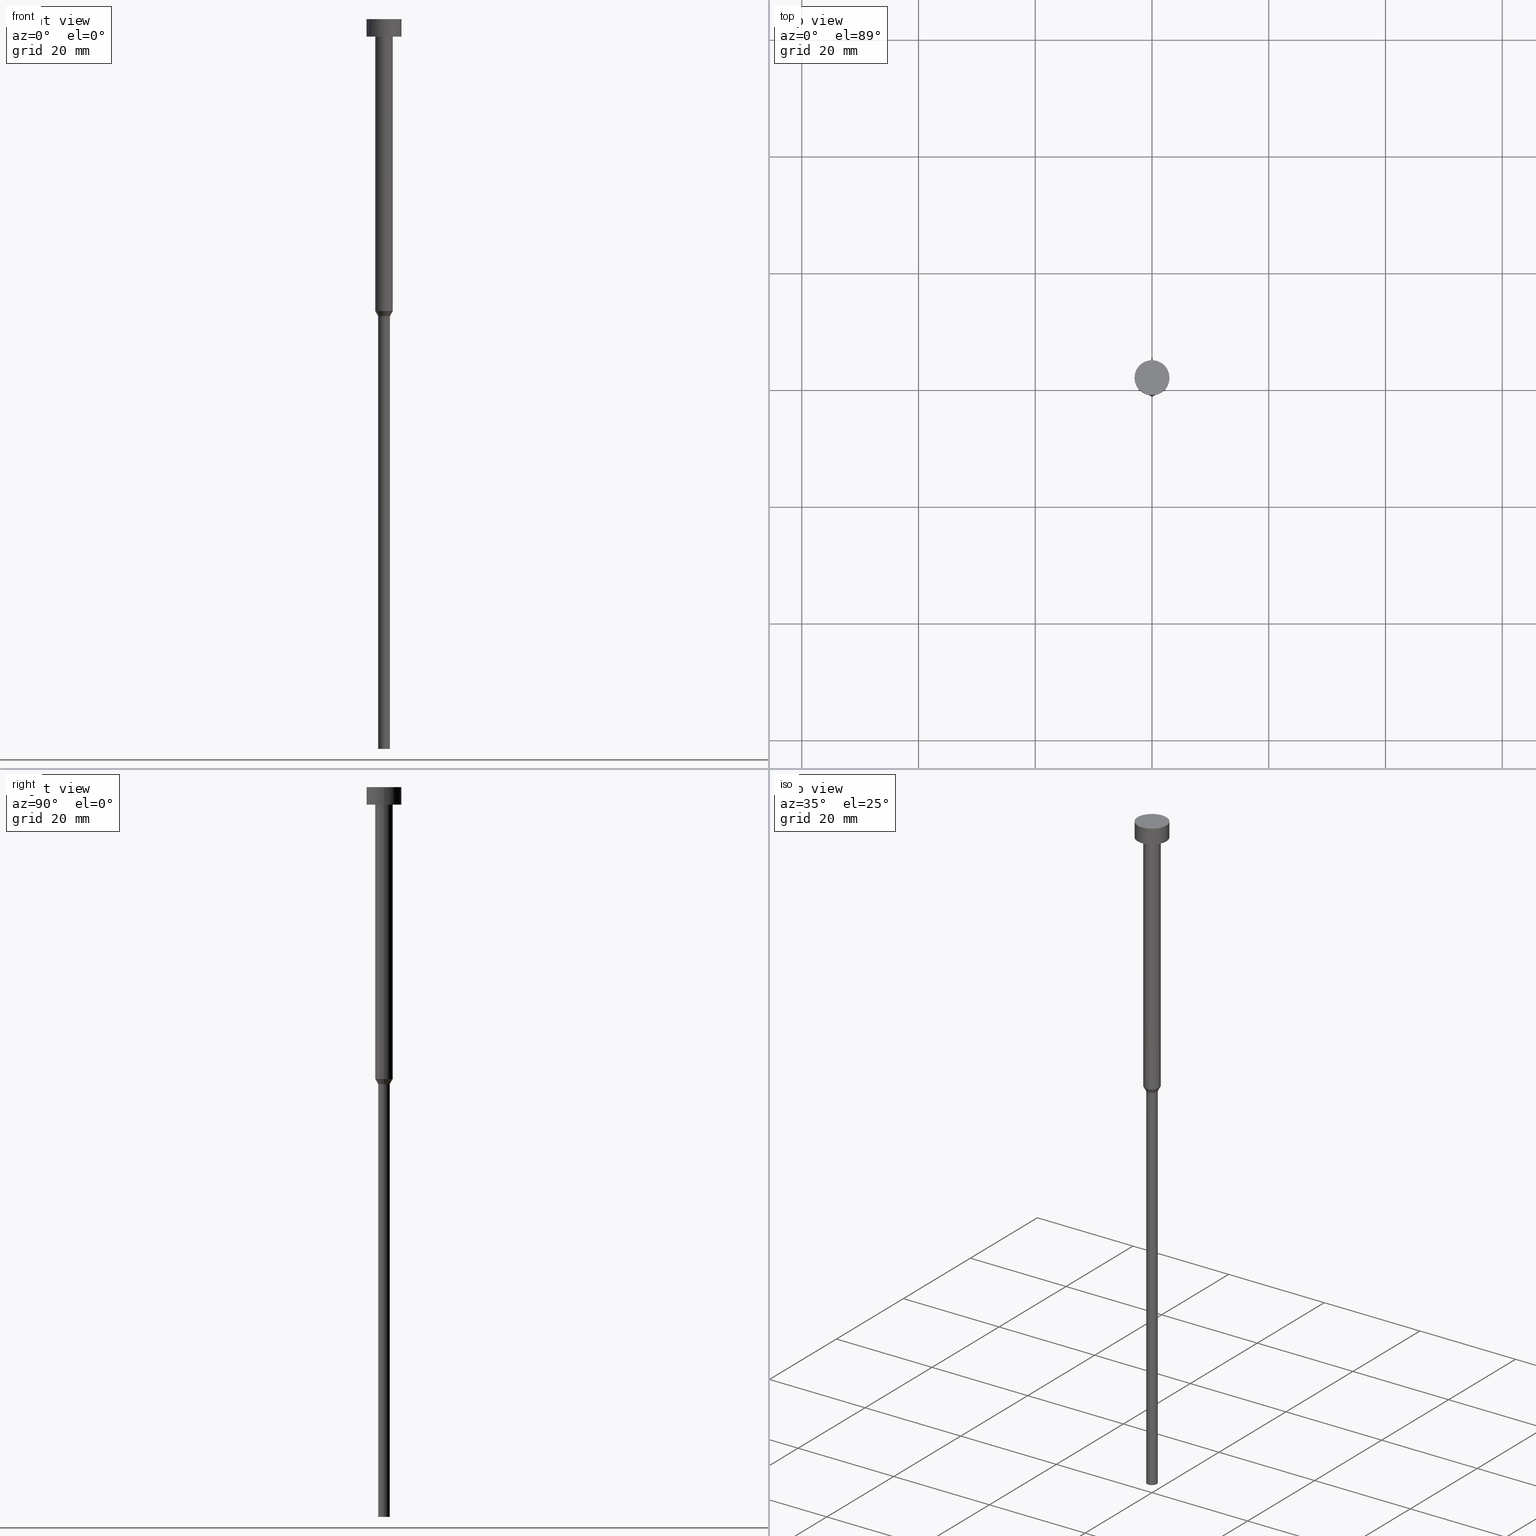
[diagram: canonical four-view strip — front | top / right | iso, engineering-drawing reading convention]
A machine part, canonical four-view strip (front | top / right | iso — engineering-drawing reading convention). The complete STEP part file that produces these views, byte-faithful:
ISO-10303-21;
HEADER;
FILE_DESCRIPTION (( 'STEP AP203' ),
    '1' );
FILE_NAME ('9678.STEP',
    '2023-02-13T10:03:48',
    ( '' ),
    ( '' ),
    'SwSTEP 2.0',
    'SolidWorks 2019',
    '' );
FILE_SCHEMA (( 'CONFIG_CONTROL_DESIGN' ));
ENDSEC;

DATA;
#1 = ORIENTED_EDGE ( 'NONE', *, *, #325, .F. ) ;
#2 = AXIS2_PLACEMENT_3D ( 'NONE', #94, #14, #314 ) ;
#3 = CARTESIAN_POINT ( 'NONE',  ( 1.000000000000000000, 0.000000000000000000, 0.000000000000000000 ) ) ;
#4 = DIRECTION ( 'NONE',  ( -0.000000000000000000, -0.000000000000000000, 1.000000000000000000 ) ) ;
#5 = ADVANCED_FACE ( 'NONE', ( #221 ), #352, .T. ) ;
#6 = CARTESIAN_POINT ( 'NONE',  ( 1.000000000000000000, 0.000000000000000000, -125.0000000000000000 ) ) ;
#7 = ORIENTED_EDGE ( 'NONE', *, *, #325, .T. ) ;
#8 = DIRECTION ( 'NONE',  ( -0.000000000000000000, -0.000000000000000000, 1.000000000000000000 ) ) ;
#9 = APPLICATION_PROTOCOL_DEFINITION ( 'international standard', 'config_control_design', 1994, #164 ) ;
#10 = LOCAL_TIME ( 11, 3, 48.00000000000000000, #76 ) ;
#11 = ORGANIZATION ( 'NEUR�EN�', 'NEUR�EN�', '' ) ;
#12 = CC_DESIGN_DATE_AND_TIME_ASSIGNMENT ( #331, #174, ( #347 ) ) ;
#13 = ORIENTED_EDGE ( 'NONE', *, *, #335, .T. ) ;
#14 = DIRECTION ( 'NONE',  ( -0.000000000000000000, -0.000000000000000000, 1.000000000000000000 ) ) ;
#15 = VECTOR ( 'NONE', #322, 1000.000000000000000 ) ;
#16 = ORIENTED_EDGE ( 'NONE', *, *, #349, .T. ) ;
#17 = APPROVAL_STATUS ( 'not_yet_approved' ) ;
#18 = AXIS2_PLACEMENT_3D ( 'NONE', #96, #157, #216 ) ;
#19 = PLANE ( 'NONE',  #159 ) ;
#20 = DATE_TIME_ROLE ( 'creation_date' ) ;
#21 = CARTESIAN_POINT ( 'NONE',  ( 3.000000000000000000, 0.000000000000000000, 0.000000000000000000 ) ) ;
#22 = APPROVAL_STATUS ( 'not_yet_approved' ) ;
#23 = AXIS2_PLACEMENT_3D ( 'NONE', #228, #55, #304 ) ;
#24 = VERTEX_POINT ( 'NONE', #50 ) ;
#25 = DIRECTION ( 'NONE',  ( -0.000000000000000000, -0.000000000000000000, 1.000000000000000000 ) ) ;
#26 = EDGE_LOOP ( 'NONE', ( #83, #44 ) ) ;
#27 = DIRECTION ( 'NONE',  ( -0.000000000000000000, -0.000000000000000000, 1.000000000000000000 ) ) ;
#28 = CIRCLE ( 'NONE', #250, 1.500000000000000000 ) ;
#29 = FACE_OUTER_BOUND ( 'NONE', #327, .T. ) ;
#30 = PERSON_AND_ORGANIZATION ( #203, #11 ) ;
#31 = CARTESIAN_POINT ( 'NONE',  ( 0.000000000000000000, 0.000000000000000000, -3.000000000000000888 ) ) ;
#32 = ORIENTED_EDGE ( 'NONE', *, *, #86, .T. ) ;
#33 = ADVANCED_FACE ( 'NONE', ( #105 ), #139, .T. ) ;
#34 = CC_DESIGN_PERSON_AND_ORGANIZATION_ASSIGNMENT ( #198, #240, ( #120 ) ) ;
#35 = EDGE_LOOP ( 'NONE', ( #224, #46 ) ) ;
#36 = CIRCLE ( 'NONE', #23, 3.000000000000000000 ) ;
#37 = CARTESIAN_POINT ( 'NONE',  ( 0.000000000000000000, 0.000000000000000000, 0.000000000000000000 ) ) ;
#38 = VERTEX_POINT ( 'NONE', #110 ) ;
#39 = FACE_OUTER_BOUND ( 'NONE', #91, .T. ) ;
#40 = PERSON_AND_ORGANIZATION_ROLE ( 'design_owner' ) ;
#41 = EDGE_CURVE ( 'NONE', #188, #114, #270, .T. ) ;
#42 = VERTEX_POINT ( 'NONE', #330 ) ;
#43 = CIRCLE ( 'NONE', #78, 3.000000000000000000 ) ;
#44 = ORIENTED_EDGE ( 'NONE', *, *, #269, .T. ) ;
#45 = DIRECTION ( 'NONE',  ( 1.000000000000000000, 0.000000000000000000, 0.000000000000000000 ) ) ;
#46 = ORIENTED_EDGE ( 'NONE', *, *, #273, .T. ) ;
#47 = APPROVAL_PERSON_ORGANIZATION ( #30, #301, #299 ) ;
#48 = AXIS2_PLACEMENT_3D ( 'NONE', #59, #288, #262 ) ;
#49 = CARTESIAN_POINT ( 'NONE',  ( 3.000000000000000000, 0.000000000000000000, -3.000000000000000888 ) ) ;
#50 = CARTESIAN_POINT ( 'NONE',  ( 1.000000000000000000, 0.000000000000000000, -50.86602540378444104 ) ) ;
#51 = COORDINATED_UNIVERSAL_TIME_OFFSET ( 1, 0, .AHEAD. ) ;
#52 = LINE ( 'NONE', #21, #311 ) ;
#53 = CONICAL_SURFACE ( 'NONE', #48, 1.500000000000000000, 0.5235987755983002589 ) ;
#54 = ORIENTED_EDGE ( 'NONE', *, *, #291, .T. ) ;
#55 = DIRECTION ( 'NONE',  ( -0.000000000000000000, -0.000000000000000000, 1.000000000000000000 ) ) ;
#56 = LINE ( 'NONE', #149, #112 ) ;
#57 = CC_DESIGN_APPROVAL ( #229, ( #141 ) ) ;
#58 = DIRECTION ( 'NONE',  ( -0.5000000000000012212, 6.123233995736782060E-17, 0.8660254037844380415 ) ) ;
#59 = CARTESIAN_POINT ( 'NONE',  ( 0.000000000000000000, 0.000000000000000000, -50.00000000000000000 ) ) ;
#60 = DIRECTION ( 'NONE',  ( 0.000000000000000000, 0.000000000000000000, 1.000000000000000000 ) ) ;
#61 = ORIENTED_EDGE ( 'NONE', *, *, #291, .F. ) ;
#62 = CIRCLE ( 'NONE', #220, 1.500000000000000000 ) ;
#63 = COORDINATED_UNIVERSAL_TIME_OFFSET ( 1, 0, .AHEAD. ) ;
#64 = EDGE_CURVE ( 'NONE', #275, #42, #167, .T. ) ;
#65 = DIRECTION ( 'NONE',  ( 1.000000000000000000, 0.000000000000000000, 0.000000000000000000 ) ) ;
#66 = ORIENTED_EDGE ( 'NONE', *, *, #124, .F. ) ;
#67 = CIRCLE ( 'NONE', #268, 1.000000000000000000 ) ;
#68 = CC_DESIGN_PERSON_AND_ORGANIZATION_ASSIGNMENT ( #323, #355, ( #141 ) ) ;
#69 = CARTESIAN_POINT ( 'NONE',  ( 0.000000000000000000, 0.000000000000000000, -125.0000000000000000 ) ) ;
#70 = CALENDAR_DATE ( 2023, 13, 2 ) ;
#71 = PRODUCT ( '9678', '9678', '', ( #217 ) ) ;
#72 = APPROVAL_PERSON_ORGANIZATION ( #346, #229, #185 ) ;
#73 = CARTESIAN_POINT ( 'NONE',  ( -3.000000000000000000, 3.673940397442059868E-16, -3.000000000000000888 ) ) ;
#74 = ORIENTED_EDGE ( 'NONE', *, *, #154, .T. ) ;
#75 = EDGE_CURVE ( 'NONE', #38, #128, #36, .T. ) ;
#76 = COORDINATED_UNIVERSAL_TIME_OFFSET ( 1, 0, .AHEAD. ) ;
#77 = DIRECTION ( 'NONE',  ( 1.000000000000000000, 0.000000000000000000, 0.000000000000000000 ) ) ;
#78 = AXIS2_PLACEMENT_3D ( 'NONE', #247, #334, #175 ) ;
#79 = LOCAL_TIME ( 11, 3, 48.00000000000000000, #246 ) ;
#80 = VERTEX_POINT ( 'NONE', #6 ) ;
#81 = DIRECTION ( 'NONE',  ( 1.000000000000000000, 0.000000000000000000, 0.000000000000000000 ) ) ;
#82 = ORIENTED_EDGE ( 'NONE', *, *, #321, .T. ) ;
#83 = ORIENTED_EDGE ( 'NONE', *, *, #75, .T. ) ;
#84 = DIRECTION ( 'NONE',  ( 1.000000000000000000, 0.000000000000000000, 0.000000000000000000 ) ) ;
#85 = PERSON_AND_ORGANIZATION_ROLE ( 'classification_officer' ) ;
#86 = EDGE_CURVE ( 'NONE', #226, #259, #243, .T. ) ;
#87 =( NAMED_UNIT ( * ) PLANE_ANGLE_UNIT ( ) SI_UNIT ( $, .RADIAN. ) );
#88 = ORIENTED_EDGE ( 'NONE', *, *, #211, .T. ) ;
#89 = DIRECTION ( 'NONE',  ( 1.000000000000000000, 0.000000000000000000, 0.000000000000000000 ) ) ;
#90 =( NAMED_UNIT ( * ) SI_UNIT ( $, .STERADIAN. ) SOLID_ANGLE_UNIT ( ) );
#91 = EDGE_LOOP ( 'NONE', ( #285, #82, #309, #294 ) ) ;
#92 = EDGE_CURVE ( 'NONE', #24, #188, #284, .T. ) ;
#93 = VECTOR ( 'NONE', #225, 1000.000000000000000 ) ;
#94 = CARTESIAN_POINT ( 'NONE',  ( 0.000000000000000000, 0.000000000000000000, 0.000000000000000000 ) ) ;
#95 = ORIENTED_EDGE ( 'NONE', *, *, #41, .F. ) ;
#96 = CARTESIAN_POINT ( 'NONE',  ( 0.000000000000000000, 0.000000000000000000, 0.000000000000000000 ) ) ;
#97 = LOCAL_TIME ( 11, 3, 48.00000000000000000, #51 ) ;
#98 = ORIENTED_EDGE ( 'NONE', *, *, #124, .T. ) ;
#99 = CALENDAR_DATE ( 2023, 13, 2 ) ;
#100 = CARTESIAN_POINT ( 'NONE',  ( 0.000000000000000000, 0.000000000000000000, 0.000000000000000000 ) ) ;
#101 = EDGE_CURVE ( 'NONE', #80, #24, #121, .T. ) ;
#102 = APPROVAL_DATE_TIME ( #163, #229 ) ;
#103 = CIRCLE ( 'NONE', #258, 1.000000000000000000 ) ;
#104 = DIRECTION ( 'NONE',  ( 1.000000000000000000, 0.000000000000000000, 0.000000000000000000 ) ) ;
#105 = FACE_OUTER_BOUND ( 'NONE', #131, .T. ) ;
#106 = DATE_AND_TIME ( #136, #97 ) ;
#107 = CARTESIAN_POINT ( 'NONE',  ( -3.000000000000000000, 3.673940397442059868E-16, 0.000000000000000000 ) ) ;
#108 = APPROVAL ( #17, 'NEUR�EN�' ) ;
#109 = DIRECTION ( 'NONE',  ( 1.000000000000000000, 0.000000000000000000, 0.000000000000000000 ) ) ;
#110 = CARTESIAN_POINT ( 'NONE',  ( 3.000000000000000000, 0.000000000000000000, -3.673940397442059868E-16 ) ) ;
#111 =( LENGTH_UNIT ( ) NAMED_UNIT ( * ) SI_UNIT ( .MILLI., .METRE. ) );
#112 = VECTOR ( 'NONE', #337, 1000.000000000000000 ) ;
#113 = CARTESIAN_POINT ( 'NONE',  ( 0.000000000000000000, 0.000000000000000000, -3.000000000000000888 ) ) ;
#114 = VERTEX_POINT ( 'NONE', #276 ) ;
#115 = SHAPE_DEFINITION_REPRESENTATION ( #178, #132 ) ;
#116 = CARTESIAN_POINT ( 'NONE',  ( -1.500000000000000000, 1.836970198721029934E-16, 0.000000000000000000 ) ) ;
#117 = DIRECTION ( 'NONE',  ( 1.000000000000000000, 0.000000000000000000, 0.000000000000000000 ) ) ;
#118 = EDGE_LOOP ( 'NONE', ( #152, #98, #215, #242 ) ) ;
#119 = DIRECTION ( 'NONE',  ( -1.000000000000000000, 0.000000000000000000, -0.000000000000000000 ) ) ;
#120 = PRODUCT_DEFINITION_FORMATION_WITH_SPECIFIED_SOURCE ( 'LIBOVOLN�', '', #71, .NOT_KNOWN. ) ;
#121 = LINE ( 'NONE', #3, #351 ) ;
#122 = CYLINDRICAL_SURFACE ( 'NONE', #341, 1.500000000000000000 ) ;
#123 = FACE_OUTER_BOUND ( 'NONE', #118, .T. ) ;
#124 = EDGE_CURVE ( 'NONE', #263, #24, #208, .T. ) ;
#125 = ORIENTED_EDGE ( 'NONE', *, *, #273, .F. ) ;
#126 = AXIS2_PLACEMENT_3D ( 'NONE', #289, #340, #65 ) ;
#127 = APPLICATION_PROTOCOL_DEFINITION ( 'international standard', 'config_control_design', 1994, #189 ) ;
#128 = VERTEX_POINT ( 'NONE', #252 ) ;
#129 = ADVANCED_FACE ( 'NONE', ( #281, #29 ), #256, .T. ) ;
#130 = CARTESIAN_POINT ( 'NONE',  ( -1.000000000000000000, 1.224646799147353207E-16, -50.86602540378444104 ) ) ;
#131 = EDGE_LOOP ( 'NONE', ( #54, #7, #156, #204 ) ) ;
#132 = ADVANCED_BREP_SHAPE_REPRESENTATION ( '9678', ( #286, #271 ), #195 ) ;
#133 = ADVANCED_FACE ( 'NONE', ( #308 ), #53, .T. ) ;
#134 = FACE_OUTER_BOUND ( 'NONE', #267, .T. ) ;
#135 = APPROVAL_ROLE ( '' ) ;
#136 = CALENDAR_DATE ( 2023, 13, 2 ) ;
#137 = CLOSED_SHELL ( 'NONE', ( #165, #140, #133, #33, #206, #317, #177, #353, #129, #257, #5 ) ) ;
#138 = VECTOR ( 'NONE', #58, 999.9999999999998863 ) ;
#139 = CYLINDRICAL_SURFACE ( 'NONE', #169, 1.000000000000000000 ) ;
#140 = ADVANCED_FACE ( 'NONE', ( #39 ), #238, .T. ) ;
#141 = PRODUCT_DEFINITION ( 'NEZN�M�', '', #120, #176 ) ;
#142 = CALENDAR_DATE ( 2023, 13, 2 ) ;
#143 = DIRECTION ( 'NONE',  ( 1.000000000000000000, 0.000000000000000000, 0.000000000000000000 ) ) ;
#144 = DIRECTION ( 'NONE',  ( -0.000000000000000000, -0.000000000000000000, 1.000000000000000000 ) ) ;
#145 = CARTESIAN_POINT ( 'NONE',  ( -1.500000000000000000, 1.836970198721029934E-16, -50.00000000000000000 ) ) ;
#146 = AXIS2_PLACEMENT_3D ( 'NONE', #31, #4, #117 ) ;
#147 = CC_DESIGN_APPROVAL ( #301, ( #347 ) ) ;
#148 = CARTESIAN_POINT ( 'NONE',  ( 0.000000000000000000, 0.000000000000000000, -50.86602540378444104 ) ) ;
#149 = CARTESIAN_POINT ( 'NONE',  ( -1.000000000000000000, 1.224646799147353207E-16, 0.000000000000000000 ) ) ;
#150 = LINE ( 'NONE', #145, #138 ) ;
#151 = LOCAL_TIME ( 11, 3, 48.00000000000000000, #63 ) ;
#152 = ORIENTED_EDGE ( 'NONE', *, *, #335, .F. ) ;
#153 = CYLINDRICAL_SURFACE ( 'NONE', #2, 3.000000000000000000 ) ;
#154 = EDGE_CURVE ( 'NONE', #188, #275, #345, .T. ) ;
#155 = CARTESIAN_POINT ( 'NONE',  ( 1.500000000000000000, 0.000000000000000000, -50.00000000000000000 ) ) ;
#156 = ORIENTED_EDGE ( 'NONE', *, *, #344, .F. ) ;
#157 = DIRECTION ( 'NONE',  ( -0.000000000000000000, -0.000000000000000000, 1.000000000000000000 ) ) ;
#158 = FACE_OUTER_BOUND ( 'NONE', #292, .T. ) ;
#159 = AXIS2_PLACEMENT_3D ( 'NONE', #69, #241, #197 ) ;
#160 = ORIENTED_EDGE ( 'NONE', *, *, #92, .F. ) ;
#161 = DIRECTION ( 'NONE',  ( 1.000000000000000000, 0.000000000000000000, 0.000000000000000000 ) ) ;
#162 = AXIS2_PLACEMENT_3D ( 'NONE', #205, #248, #89 ) ;
#163 = DATE_AND_TIME ( #99, #151 ) ;
#164 = APPLICATION_CONTEXT ( 'configuration controlled 3d designs of mechanical parts and assemblies' ) ;
#165 = ADVANCED_FACE ( 'NONE', ( #184 ), #153, .T. ) ;
#166 = CC_DESIGN_DATE_AND_TIME_ASSIGNMENT ( #298, #20, ( #141 ) ) ;
#167 = CIRCLE ( 'NONE', #162, 1.500000000000000000 ) ;
#168 = PERSON_AND_ORGANIZATION ( #203, #11 ) ;
#169 = AXIS2_PLACEMENT_3D ( 'NONE', #244, #354, #328 ) ;
#170 = CIRCLE ( 'NONE', #235, 1.000000000000000000 ) ;
#171 = DIRECTION ( 'NONE',  ( -0.000000000000000000, -0.000000000000000000, 1.000000000000000000 ) ) ;
#172 = CYLINDRICAL_SURFACE ( 'NONE', #219, 1.000000000000000000 ) ;
#173 = DIRECTION ( 'NONE',  ( 0.5000000000000012212, 0.000000000000000000, 0.8660254037844380415 ) ) ;
#174 = DATE_TIME_ROLE ( 'classification_date' ) ;
#175 = DIRECTION ( 'NONE',  ( 1.000000000000000000, 0.000000000000000000, 0.000000000000000000 ) ) ;
#176 = DESIGN_CONTEXT ( 'detailed design', #189, 'design' ) ;
#177 = ADVANCED_FACE ( 'NONE', ( #123 ), #329, .T. ) ;
#178 = PRODUCT_DEFINITION_SHAPE ( 'NONE', 'NONE',  #141 ) ;
#179 = VERTEX_POINT ( 'NONE', #310 ) ;
#180 = DIRECTION ( 'NONE',  ( 1.000000000000000000, 0.000000000000000000, 0.000000000000000000 ) ) ;
#181 = ORIENTED_EDGE ( 'NONE', *, *, #321, .F. ) ;
#182 = COORDINATED_UNIVERSAL_TIME_OFFSET ( 1, 0, .AHEAD. ) ;
#183 = ORIENTED_EDGE ( 'NONE', *, *, #269, .F. ) ;
#184 = FACE_OUTER_BOUND ( 'NONE', #343, .T. ) ;
#185 = APPROVAL_ROLE ( '' ) ;
#186 = AXIS2_PLACEMENT_3D ( 'NONE', #148, #144, #84 ) ;
#187 = CARTESIAN_POINT ( 'NONE',  ( 1.500000000000000000, 0.000000000000000000, 0.000000000000000000 ) ) ;
#188 = VERTEX_POINT ( 'NONE', #155 ) ;
#189 = APPLICATION_CONTEXT ( 'configuration controlled 3d designs of mechanical parts and assemblies' ) ;
#190 = DIRECTION ( 'NONE',  ( 1.000000000000000000, 0.000000000000000000, 0.000000000000000000 ) ) ;
#191 = EDGE_LOOP ( 'NONE', ( #1, #88, #303, #66 ) ) ;
#192 = CALENDAR_DATE ( 2023, 13, 2 ) ;
#193 = DATE_AND_TIME ( #70, #79 ) ;
#194 = LINE ( 'NONE', #107, #15 ) ;
#195 =( GEOMETRIC_REPRESENTATION_CONTEXT ( 3 ) GLOBAL_UNCERTAINTY_ASSIGNED_CONTEXT ( ( #277 ) ) GLOBAL_UNIT_ASSIGNED_CONTEXT ( ( #111, #87, #90 ) ) REPRESENTATION_CONTEXT ( 'NONE', 'WORKASPACE' ) );
#196 = DIRECTION ( 'NONE',  ( 0.000000000000000000, -0.000000000000000000, 1.000000000000000000 ) ) ;
#197 = DIRECTION ( 'NONE',  ( -1.000000000000000000, 0.000000000000000000, -0.000000000000000000 ) ) ;
#198 = PERSON_AND_ORGANIZATION ( #203, #11 ) ;
#199 = EDGE_CURVE ( 'NONE', #114, #188, #62, .T. ) ;
#200 = LOCAL_TIME ( 11, 3, 48.00000000000000000, #182 ) ;
#201 = DIRECTION ( 'NONE',  ( -0.000000000000000000, -0.000000000000000000, 1.000000000000000000 ) ) ;
#202 = CARTESIAN_POINT ( 'NONE',  ( 1.500000000000000000, 0.000000000000000000, -50.00000000000000000 ) ) ;
#203 = PERSON ( 'NEUR�EN�', 'NEUR�EN�', 'NEUR�EN�', ('NEUR�EN�'), ('NEUR�EN�'), ('NEUR�EN�') ) ;
#204 = ORIENTED_EDGE ( 'NONE', *, *, #101, .F. ) ;
#205 = CARTESIAN_POINT ( 'NONE',  ( 0.000000000000000000, 0.000000000000000000, -3.000000000000000888 ) ) ;
#206 = ADVANCED_FACE ( 'NONE', ( #158 ), #19, .T. ) ;
#207 = CARTESIAN_POINT ( 'NONE',  ( 0.000000000000000000, 0.000000000000000000, -50.86602540378444104 ) ) ;
#208 = CIRCLE ( 'NONE', #186, 1.000000000000000000 ) ;
#209 = ORIENTED_EDGE ( 'NONE', *, *, #245, .F. ) ;
#210 = CARTESIAN_POINT ( 'NONE',  ( 0.000000000000000000, -3.000000000000000000, -3.000000000000000888 ) ) ;
#211 = EDGE_CURVE ( 'NONE', #179, #80, #67, .T. ) ;
#212 = ORIENTED_EDGE ( 'NONE', *, *, #245, .T. ) ;
#213 = DIRECTION ( 'NONE',  ( 1.000000000000000000, 0.000000000000000000, 0.000000000000000000 ) ) ;
#214 = FACE_OUTER_BOUND ( 'NONE', #266, .T. ) ;
#215 = ORIENTED_EDGE ( 'NONE', *, *, #92, .T. ) ;
#216 = DIRECTION ( 'NONE',  ( 1.000000000000000000, 0.000000000000000000, 0.000000000000000000 ) ) ;
#217 = MECHANICAL_CONTEXT ( 'NONE', #164, 'mechanical' ) ;
#218 = EDGE_CURVE ( 'NONE', #259, #128, #194, .T. ) ;
#219 = AXIS2_PLACEMENT_3D ( 'NONE', #278, #27, #77 ) ;
#220 = AXIS2_PLACEMENT_3D ( 'NONE', #237, #260, #190 ) ;
#221 = FACE_OUTER_BOUND ( 'NONE', #26, .T. ) ;
#222 = CARTESIAN_POINT ( 'NONE',  ( 0.000000000000000000, 0.000000000000000000, -125.0000000000000000 ) ) ;
#223 = VECTOR ( 'NONE', #342, 1000.000000000000000 ) ;
#224 = ORIENTED_EDGE ( 'NONE', *, *, #64, .T. ) ;
#225 = DIRECTION ( 'NONE',  ( -0.000000000000000000, -0.000000000000000000, 1.000000000000000000 ) ) ;
#226 = VERTEX_POINT ( 'NONE', #49 ) ;
#227 = LINE ( 'NONE', #116, #93 ) ;
#228 = CARTESIAN_POINT ( 'NONE',  ( 0.000000000000000000, 0.000000000000000000, -3.673940397442059868E-16 ) ) ;
#229 = APPROVAL ( #312, 'NEUR�EN�' ) ;
#230 = DIRECTION ( 'NONE',  ( -0.000000000000000000, -0.000000000000000000, 1.000000000000000000 ) ) ;
#231 = DIRECTION ( 'NONE',  ( -0.000000000000000000, -0.000000000000000000, 1.000000000000000000 ) ) ;
#232 = ORIENTED_EDGE ( 'NONE', *, *, #211, .F. ) ;
#233 = ORIENTED_EDGE ( 'NONE', *, *, #349, .F. ) ;
#234 = PERSON_AND_ORGANIZATION ( #203, #11 ) ;
#235 = AXIS2_PLACEMENT_3D ( 'NONE', #207, #253, #143 ) ;
#236 = CC_DESIGN_PERSON_AND_ORGANIZATION_ASSIGNMENT ( #234, #40, ( #71 ) ) ;
#237 = CARTESIAN_POINT ( 'NONE',  ( 0.000000000000000000, 0.000000000000000000, -50.00000000000000000 ) ) ;
#238 = CYLINDRICAL_SURFACE ( 'NONE', #18, 1.500000000000000000 ) ;
#239 = AXIS2_PLACEMENT_3D ( 'NONE', #100, #297, #45 ) ;
#240 = PERSON_AND_ORGANIZATION_ROLE ( 'creator' ) ;
#241 = DIRECTION ( 'NONE',  ( 0.000000000000000000, 0.000000000000000000, -1.000000000000000000 ) ) ;
#242 = ORIENTED_EDGE ( 'NONE', *, *, #199, .F. ) ;
#243 = CIRCLE ( 'NONE', #287, 3.000000000000000000 ) ;
#244 = CARTESIAN_POINT ( 'NONE',  ( 0.000000000000000000, 0.000000000000000000, 0.000000000000000000 ) ) ;
#245 = EDGE_CURVE ( 'NONE', #226, #38, #52, .T. ) ;
#246 = COORDINATED_UNIVERSAL_TIME_OFFSET ( 1, 0, .AHEAD. ) ;
#247 = CARTESIAN_POINT ( 'NONE',  ( 0.000000000000000000, 0.000000000000000000, -3.673940397442059868E-16 ) ) ;
#248 = DIRECTION ( 'NONE',  ( -0.000000000000000000, -0.000000000000000000, 1.000000000000000000 ) ) ;
#249 = PERSON_AND_ORGANIZATION ( #203, #11 ) ;
#250 = AXIS2_PLACEMENT_3D ( 'NONE', #113, #171, #109 ) ;
#251 = DIRECTION ( 'NONE',  ( 1.000000000000000000, 0.000000000000000000, 0.000000000000000000 ) ) ;
#252 = CARTESIAN_POINT ( 'NONE',  ( -3.000000000000000000, 3.673940397442059868E-16, -3.673940397442059868E-16 ) ) ;
#253 = DIRECTION ( 'NONE',  ( -0.000000000000000000, -0.000000000000000000, 1.000000000000000000 ) ) ;
#254 = DIRECTION ( 'NONE',  ( 0.000000000000000000, 0.000000000000000000, -1.000000000000000000 ) ) ;
#255 = CARTESIAN_POINT ( 'NONE',  ( 0.000000000000000000, 0.000000000000000000, -125.0000000000000000 ) ) ;
#256 = PLANE ( 'NONE',  #305 ) ;
#257 = ADVANCED_FACE ( 'NONE', ( #134 ), #293, .T. ) ;
#258 = AXIS2_PLACEMENT_3D ( 'NONE', #255, #201, #180 ) ;
#259 = VERTEX_POINT ( 'NONE', #73 ) ;
#260 = DIRECTION ( 'NONE',  ( -0.000000000000000000, -0.000000000000000000, 1.000000000000000000 ) ) ;
#261 = APPROVAL_PERSON_ORGANIZATION ( #296, #108, #135 ) ;
#262 = DIRECTION ( 'NONE',  ( 1.000000000000000000, 0.000000000000000000, 0.000000000000000000 ) ) ;
#263 = VERTEX_POINT ( 'NONE', #130 ) ;
#264 = CC_DESIGN_PERSON_AND_ORGANIZATION_ASSIGNMENT ( #249, #85, ( #347 ) ) ;
#265 = DIRECTION ( 'NONE',  ( 1.000000000000000000, 0.000000000000000000, 0.000000000000000000 ) ) ;
#266 = EDGE_LOOP ( 'NONE', ( #181, #290, #74, #125 ) ) ;
#267 = EDGE_LOOP ( 'NONE', ( #302, #16, #212, #183 ) ) ;
#268 = AXIS2_PLACEMENT_3D ( 'NONE', #222, #350, #104 ) ;
#269 = EDGE_CURVE ( 'NONE', #128, #38, #43, .T. ) ;
#270 = CIRCLE ( 'NONE', #316, 1.500000000000000000 ) ;
#271 = AXIS2_PLACEMENT_3D ( 'NONE', #37, #60, #265 ) ;
#272 = CARTESIAN_POINT ( 'NONE',  ( 0.000000000000000000, 0.000000000000000000, -3.000000000000000888 ) ) ;
#273 = EDGE_CURVE ( 'NONE', #42, #275, #28, .T. ) ;
#274 = FACE_OUTER_BOUND ( 'NONE', #191, .T. ) ;
#275 = VERTEX_POINT ( 'NONE', #306 ) ;
#276 = CARTESIAN_POINT ( 'NONE',  ( -1.500000000000000000, 1.836970198721029934E-16, -50.00000000000000000 ) ) ;
#277 = UNCERTAINTY_MEASURE_WITH_UNIT (LENGTH_MEASURE( 1.000000000000000082E-05 ), #111, 'distance_accuracy_value', 'NONE');
#278 = CARTESIAN_POINT ( 'NONE',  ( 0.000000000000000000, 0.000000000000000000, 0.000000000000000000 ) ) ;
#279 = VECTOR ( 'NONE', #173, 999.9999999999998863 ) ;
#280 = EDGE_LOOP ( 'NONE', ( #315, #13, #95, #160 ) ) ;
#281 = FACE_BOUND ( 'NONE', #35, .T. ) ;
#282 = SECURITY_CLASSIFICATION_LEVEL ( 'unclassified' ) ;
#283 = APPROVAL_DATE_TIME ( #193, #301 ) ;
#284 = LINE ( 'NONE', #202, #279 ) ;
#285 = ORIENTED_EDGE ( 'NONE', *, *, #41, .T. ) ;
#286 = MANIFOLD_SOLID_BREP ( 'Rotovat1', #137 ) ;
#287 = AXIS2_PLACEMENT_3D ( 'NONE', #272, #25, #213 ) ;
#288 = DIRECTION ( 'NONE',  ( -0.000000000000000000, -0.000000000000000000, 1.000000000000000000 ) ) ;
#289 = CARTESIAN_POINT ( 'NONE',  ( 0.000000000000000000, 0.000000000000000000, -50.00000000000000000 ) ) ;
#290 = ORIENTED_EDGE ( 'NONE', *, *, #199, .T. ) ;
#291 = EDGE_CURVE ( 'NONE', #80, #179, #103, .T. ) ;
#292 = EDGE_LOOP ( 'NONE', ( #61, #232 ) ) ;
#293 = CYLINDRICAL_SURFACE ( 'NONE', #239, 3.000000000000000000 ) ;
#294 = ORIENTED_EDGE ( 'NONE', *, *, #154, .F. ) ;
#295 = CIRCLE ( 'NONE', #146, 3.000000000000000000 ) ;
#296 = PERSON_AND_ORGANIZATION ( #203, #11 ) ;
#297 = DIRECTION ( 'NONE',  ( -0.000000000000000000, -0.000000000000000000, 1.000000000000000000 ) ) ;
#298 = DATE_AND_TIME ( #192, #10 ) ;
#299 = APPROVAL_ROLE ( '' ) ;
#300 = ORIENTED_EDGE ( 'NONE', *, *, #75, .F. ) ;
#301 = APPROVAL ( #22, 'NEUR�EN�' ) ;
#302 = ORIENTED_EDGE ( 'NONE', *, *, #218, .F. ) ;
#303 = ORIENTED_EDGE ( 'NONE', *, *, #101, .T. ) ;
#304 = DIRECTION ( 'NONE',  ( 1.000000000000000000, 0.000000000000000000, 0.000000000000000000 ) ) ;
#305 = AXIS2_PLACEMENT_3D ( 'NONE', #210, #254, #119 ) ;
#306 = CARTESIAN_POINT ( 'NONE',  ( 1.500000000000000000, 0.000000000000000000, -3.000000000000000888 ) ) ;
#307 = ORIENTED_EDGE ( 'NONE', *, *, #86, .F. ) ;
#308 = FACE_OUTER_BOUND ( 'NONE', #280, .T. ) ;
#309 = ORIENTED_EDGE ( 'NONE', *, *, #64, .F. ) ;
#310 = CARTESIAN_POINT ( 'NONE',  ( -1.000000000000000000, 1.224646799147353207E-16, -125.0000000000000000 ) ) ;
#311 = VECTOR ( 'NONE', #319, 1000.000000000000000 ) ;
#312 = APPROVAL_STATUS ( 'not_yet_approved' ) ;
#313 = CC_DESIGN_SECURITY_CLASSIFICATION ( #347, ( #120 ) ) ;
#314 = DIRECTION ( 'NONE',  ( 1.000000000000000000, 0.000000000000000000, 0.000000000000000000 ) ) ;
#315 = ORIENTED_EDGE ( 'NONE', *, *, #344, .T. ) ;
#316 = AXIS2_PLACEMENT_3D ( 'NONE', #333, #230, #81 ) ;
#317 = ADVANCED_FACE ( 'NONE', ( #274 ), #172, .T. ) ;
#318 = CC_DESIGN_APPROVAL ( #108, ( #120 ) ) ;
#319 = DIRECTION ( 'NONE',  ( -0.000000000000000000, -0.000000000000000000, 1.000000000000000000 ) ) ;
#320 = CARTESIAN_POINT ( 'NONE',  ( 0.000000000000000000, 0.000000000000000000, -1.836970198721029934E-16 ) ) ;
#321 = EDGE_CURVE ( 'NONE', #114, #42, #227, .T. ) ;
#322 = DIRECTION ( 'NONE',  ( -0.000000000000000000, -0.000000000000000000, 1.000000000000000000 ) ) ;
#323 = PERSON_AND_ORGANIZATION ( #203, #11 ) ;
#324 = APPROVAL_DATE_TIME ( #106, #108 ) ;
#325 = EDGE_CURVE ( 'NONE', #179, #263, #56, .T. ) ;
#326 = CC_DESIGN_PERSON_AND_ORGANIZATION_ASSIGNMENT ( #168, #348, ( #120 ) ) ;
#327 = EDGE_LOOP ( 'NONE', ( #307, #233 ) ) ;
#328 = DIRECTION ( 'NONE',  ( 1.000000000000000000, 0.000000000000000000, 0.000000000000000000 ) ) ;
#329 = CONICAL_SURFACE ( 'NONE', #126, 1.500000000000000000, 0.5235987755983002589 ) ;
#330 = CARTESIAN_POINT ( 'NONE',  ( -1.500000000000000000, 1.836970198721029934E-16, -3.000000000000000888 ) ) ;
#331 = DATE_AND_TIME ( #142, #200 ) ;
#332 = CARTESIAN_POINT ( 'NONE',  ( 0.000000000000000000, 0.000000000000000000, 0.000000000000000000 ) ) ;
#333 = CARTESIAN_POINT ( 'NONE',  ( 0.000000000000000000, 0.000000000000000000, -50.00000000000000000 ) ) ;
#334 = DIRECTION ( 'NONE',  ( -0.000000000000000000, -0.000000000000000000, 1.000000000000000000 ) ) ;
#335 = EDGE_CURVE ( 'NONE', #263, #114, #150, .T. ) ;
#336 = AXIS2_PLACEMENT_3D ( 'NONE', #320, #196, #161 ) ;
#337 = DIRECTION ( 'NONE',  ( -0.000000000000000000, -0.000000000000000000, 1.000000000000000000 ) ) ;
#338 = PRODUCT_RELATED_PRODUCT_CATEGORY ( 'detail', '', ( #71 ) ) ;
#339 = ORIENTED_EDGE ( 'NONE', *, *, #218, .T. ) ;
#340 = DIRECTION ( 'NONE',  ( -0.000000000000000000, -0.000000000000000000, 1.000000000000000000 ) ) ;
#341 = AXIS2_PLACEMENT_3D ( 'NONE', #332, #231, #251 ) ;
#342 = DIRECTION ( 'NONE',  ( -0.000000000000000000, -0.000000000000000000, 1.000000000000000000 ) ) ;
#343 = EDGE_LOOP ( 'NONE', ( #32, #339, #300, #209 ) ) ;
#344 = EDGE_CURVE ( 'NONE', #24, #263, #170, .T. ) ;
#345 = LINE ( 'NONE', #187, #223 ) ;
#346 = PERSON_AND_ORGANIZATION ( #203, #11 ) ;
#347 = SECURITY_CLASSIFICATION ( '', '', #282 ) ;
#348 = PERSON_AND_ORGANIZATION_ROLE ( 'design_supplier' ) ;
#349 = EDGE_CURVE ( 'NONE', #259, #226, #295, .T. ) ;
#350 = DIRECTION ( 'NONE',  ( -0.000000000000000000, -0.000000000000000000, 1.000000000000000000 ) ) ;
#351 = VECTOR ( 'NONE', #8, 1000.000000000000000 ) ;
#352 = PLANE ( 'NONE',  #336 ) ;
#353 = ADVANCED_FACE ( 'NONE', ( #214 ), #122, .T. ) ;
#354 = DIRECTION ( 'NONE',  ( -0.000000000000000000, -0.000000000000000000, 1.000000000000000000 ) ) ;
#355 = PERSON_AND_ORGANIZATION_ROLE ( 'creator' ) ;
ENDSEC;
END-ISO-10303-21;
